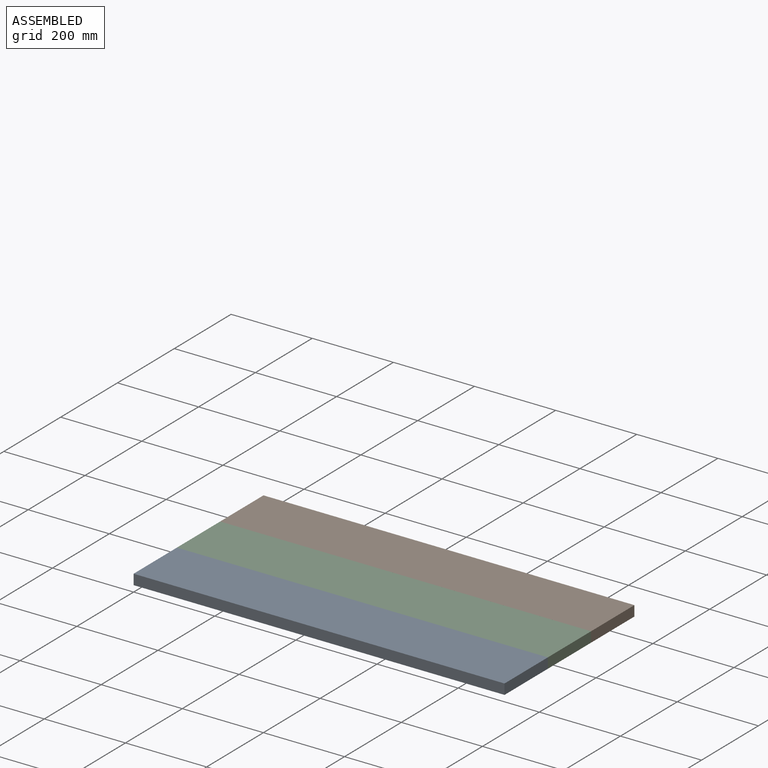
[diagram: assembled view]
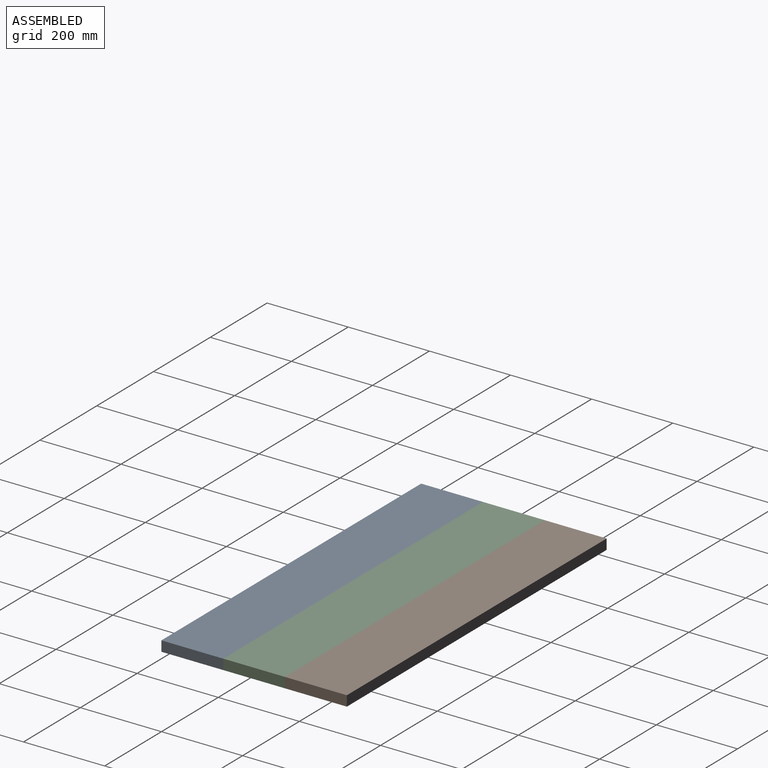
[diagram: assembled view, second angle]
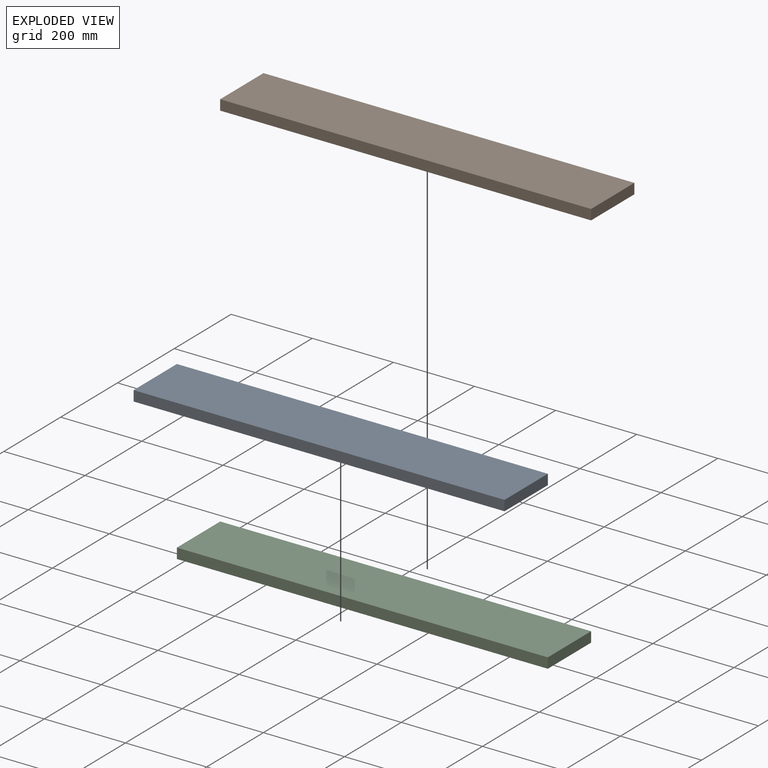
[diagram: exploded view]
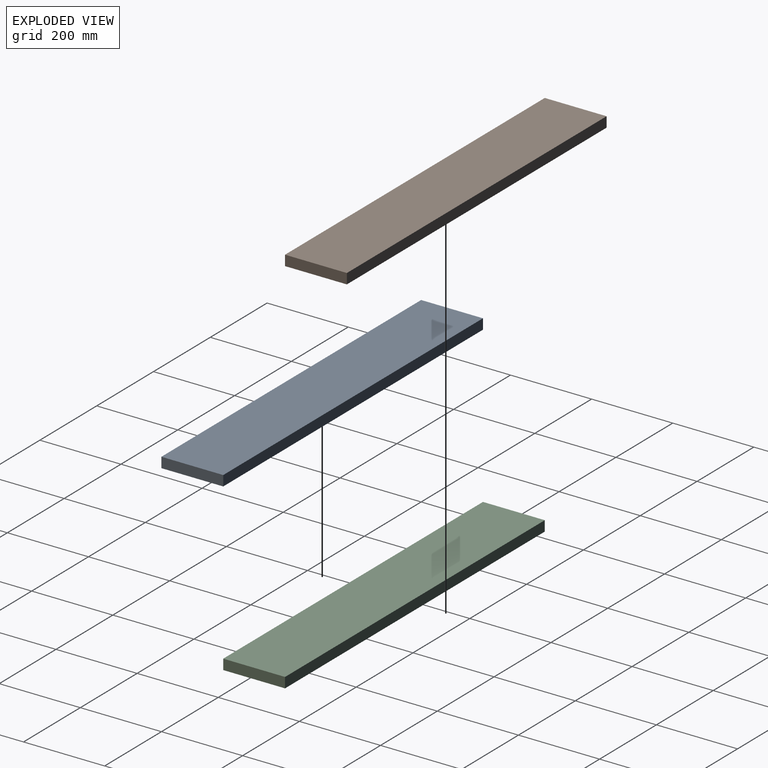
[diagram: exploded view, second angle]
ASSEMBLY  parts=3 mates=2
PART A: 6 faces, bbox 914.4x152.4x25.4 mm
  f0: plane 152.4x25.4mm, normal (-1,0,0), area 3871mm2, adj f1,f3,f4,f5
  f1: plane 914.4x25.4mm, normal (0,-1,0), area 23225.8mm2, adj f0,f2,f4,f5
  f2: plane 152.4x25.4mm, normal (1,0,0), area 3871mm2, adj f1,f3,f4,f5
  f3: plane 914.4x25.4mm, normal (0,1,0), area 23225.8mm2, adj f0,f2,f4,f5
  f4: plane 914.4x152.4mm, normal (0,0,1), area 139354.6mm2, adj f0,f1,f2,f3
  f5: plane 914.4x152.4mm, normal (0,0,-1), area 139354.6mm2, adj f0,f1,f2,f3
PART B: same geometry as A
PART C: same geometry as A
PLACE A at identity fixed
PLACE B t=(0,304.8,0)mm
PLACE C t=(0,152.4,0)mm
MATE fastened B.f4 <-> C.f4  axis (0,0,1) through (0,304.8,25.4)mm
MATE fastened C.f4 <-> A.f4  axis (0,0,1) through (0,152.4,25.4)mm
